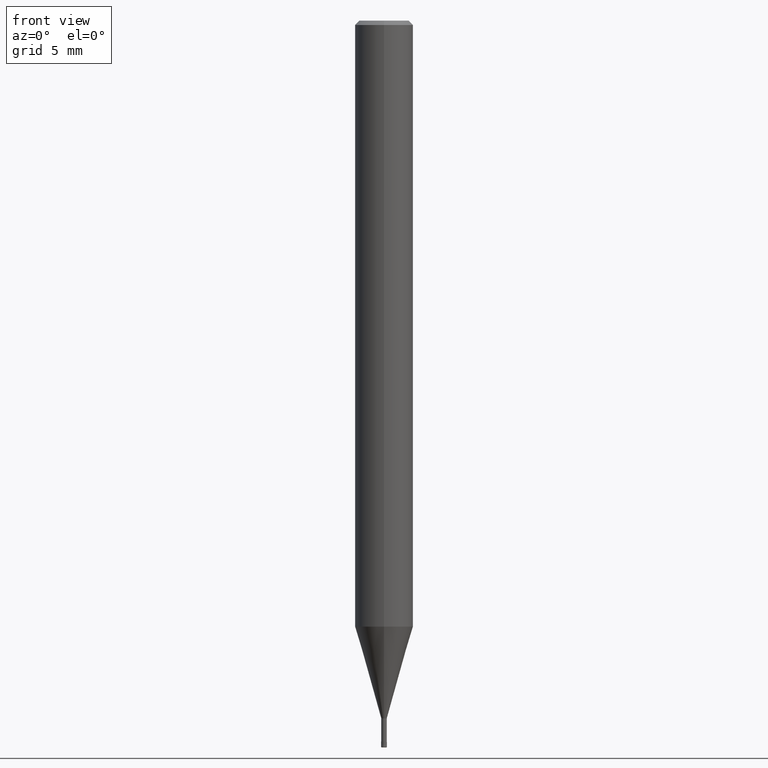
[diagram: clean part render]
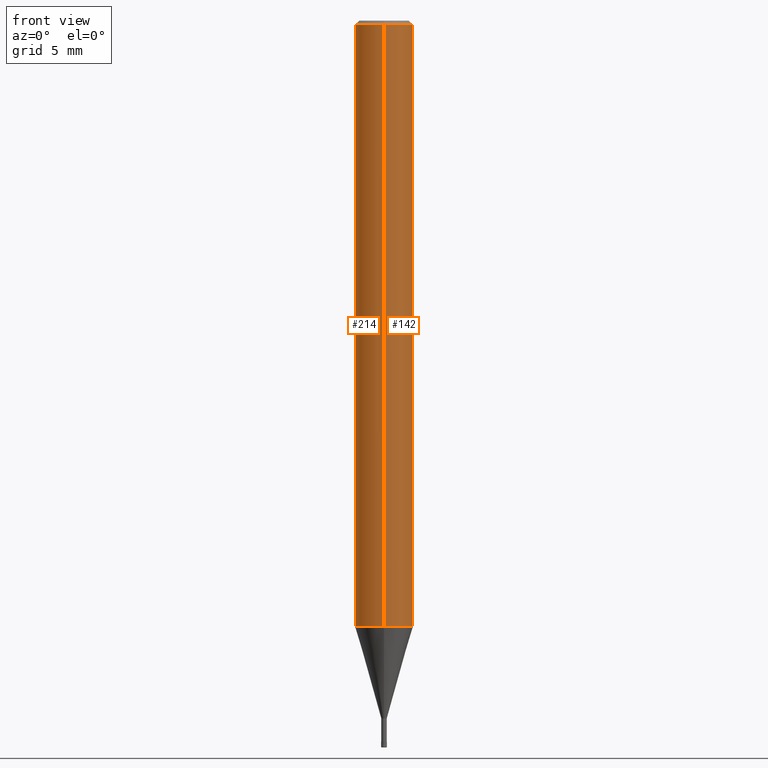
[diagram: same view with one multi-face feature highlighted, each face labeled with its STEP entity id]
A machine part, front view. The highlighted faces form ONE feature: a constant-radius fillet chain: 2 tangent blend faces with common blend radius 2 mm. The faces share edges in the B-rep.
Their STEP definitions:
[1] entity #214 (Cylinder):
#100=EDGE_CURVE('',#186,#228,#253,.T.);
#144=EDGE_CURVE('',#202,#184,#303,.T.);
#180=EDGE_CURVE('',#202,#186,#342,.T.);
#184=VERTEX_POINT('',#346);
#186=VERTEX_POINT('',#348);
#202=VERTEX_POINT('',#367);
#214=ADVANCED_FACE('',(#382),#383,.T.);
#218=EDGE_CURVE('',#228,#184,#388,.T.);
#228=VERTEX_POINT('',#398);
#253=CIRCLE('',#417,2.0);
#303=CIRCLE('',#485,2.0);
#342=LINE('',#531,#532);
#346=CARTESIAN_POINT('',(0.0,2.0,-41.688));
#348=CARTESIAN_POINT('',(2.44921270764475E-016,-2.0,-0.299999999999997));
#367=CARTESIAN_POINT('',(2.44921270764475E-016,-2.0,-41.688));
#382=FACE_OUTER_BOUND('',#579,.T.);
#383=CYLINDRICAL_SURFACE('',#580,2.0);
#388=LINE('',#586,#587);
#398=CARTESIAN_POINT('',(0.0,2.0,-0.299999999999997));
#417=AXIS2_PLACEMENT_3D('',#606,#607,#608);
#485=AXIS2_PLACEMENT_3D('',#678,#679,#680);
#531=CARTESIAN_POINT('',(2.44921270764475E-016,-2.0,-20.994));
#532=VECTOR('',#722,1.0);
#579=EDGE_LOOP('',(#779,#780,#781,#782));
#580=AXIS2_PLACEMENT_3D('',#783,#784,#785);
#586=CARTESIAN_POINT('',(-2.44921270764475E-016,2.0,-20.994));
#587=VECTOR('',#792,1.0);
#606=CARTESIAN_POINT('',(0.0,0.0,-0.299999999999997));
#607=DIRECTION('',(0.0,0.0,-1.0));
#608=DIRECTION('',(0.0,1.0,0.0));
#678=CARTESIAN_POINT('',(0.0,0.0,-41.688));
#679=DIRECTION('',(0.0,0.0,-1.0));
#680=DIRECTION('',(0.0,1.0,0.0));
#722=DIRECTION('',(-0.0,-0.0,1.0));
#779=ORIENTED_EDGE('',*,*,#218,.T.);
#780=ORIENTED_EDGE('',*,*,#144,.F.);
#781=ORIENTED_EDGE('',*,*,#180,.T.);
#782=ORIENTED_EDGE('',*,*,#100,.T.);
#783=CARTESIAN_POINT('',(0.0,0.0,-20.994));
#784=DIRECTION('',(-0.0,-0.0,1.0));
#785=DIRECTION('',(0.0,1.0,0.0));
#792=DIRECTION('',(0.0,0.0,-1.0));
[2] entity #142 (Cylinder):
#142=ADVANCED_FACE('',(#300),#301,.T.);
#168=EDGE_CURVE('',#184,#202,#327,.T.);
#180=EDGE_CURVE('',#202,#186,#342,.T.);
#184=VERTEX_POINT('',#346);
#186=VERTEX_POINT('',#348);
#190=EDGE_CURVE('',#228,#186,#353,.T.);
#202=VERTEX_POINT('',#367);
#218=EDGE_CURVE('',#228,#184,#388,.T.);
#228=VERTEX_POINT('',#398);
#300=FACE_OUTER_BOUND('',#481,.T.);
#301=CYLINDRICAL_SURFACE('',#482,2.0);
#327=CIRCLE('',#514,2.0);
#342=LINE('',#531,#532);
#346=CARTESIAN_POINT('',(0.0,2.0,-41.688));
#348=CARTESIAN_POINT('',(2.44921270764475E-016,-2.0,-0.299999999999997));
#353=CIRCLE('',#546,2.0);
#367=CARTESIAN_POINT('',(2.44921270764475E-016,-2.0,-41.688));
#388=LINE('',#586,#587);
#398=CARTESIAN_POINT('',(0.0,2.0,-0.299999999999997));
#481=EDGE_LOOP('',(#671,#672,#673,#674));
#482=AXIS2_PLACEMENT_3D('',#675,#676,#677);
#514=AXIS2_PLACEMENT_3D('',#692,#693,#694);
#531=CARTESIAN_POINT('',(2.44921270764475E-016,-2.0,-20.994));
#532=VECTOR('',#722,1.0);
#546=AXIS2_PLACEMENT_3D('',#732,#733,#734);
#586=CARTESIAN_POINT('',(-2.44921270764475E-016,2.0,-20.994));
#587=VECTOR('',#792,1.0);
#671=ORIENTED_EDGE('',*,*,#218,.F.);
#672=ORIENTED_EDGE('',*,*,#190,.T.);
#673=ORIENTED_EDGE('',*,*,#180,.F.);
#674=ORIENTED_EDGE('',*,*,#168,.F.);
#675=CARTESIAN_POINT('',(0.0,0.0,-20.994));
#676=DIRECTION('',(-0.0,-0.0,1.0));
#677=DIRECTION('',(0.0,1.0,0.0));
#692=CARTESIAN_POINT('',(0.0,0.0,-41.688));
#693=DIRECTION('',(0.0,0.0,-1.0));
#694=DIRECTION('',(0.0,1.0,0.0));
#722=DIRECTION('',(-0.0,-0.0,1.0));
#732=CARTESIAN_POINT('',(0.0,0.0,-0.299999999999997));
#733=DIRECTION('',(0.0,0.0,-1.0));
#734=DIRECTION('',(0.0,1.0,0.0));
#792=DIRECTION('',(0.0,0.0,-1.0));